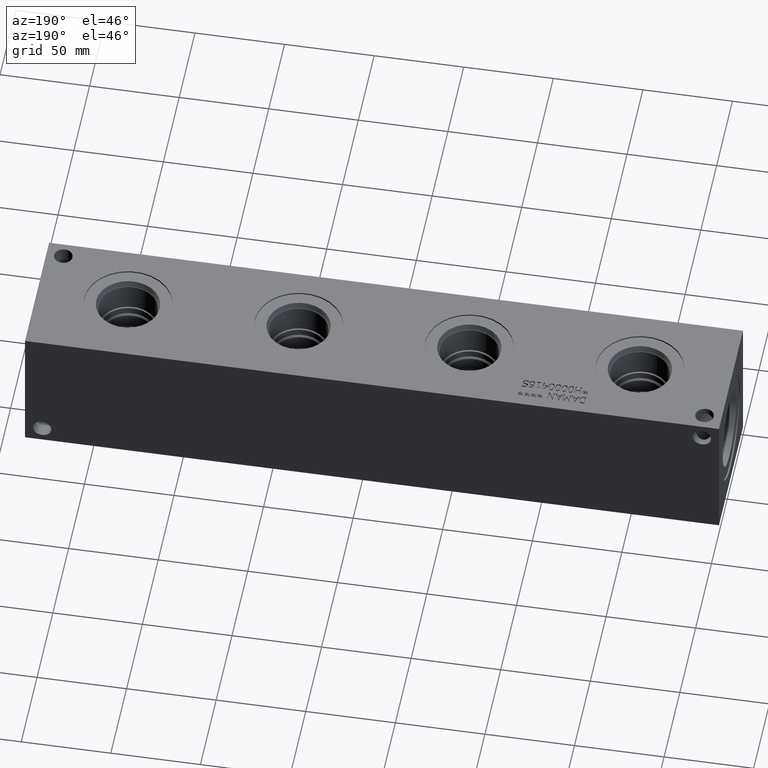
[diagram: clean part render]
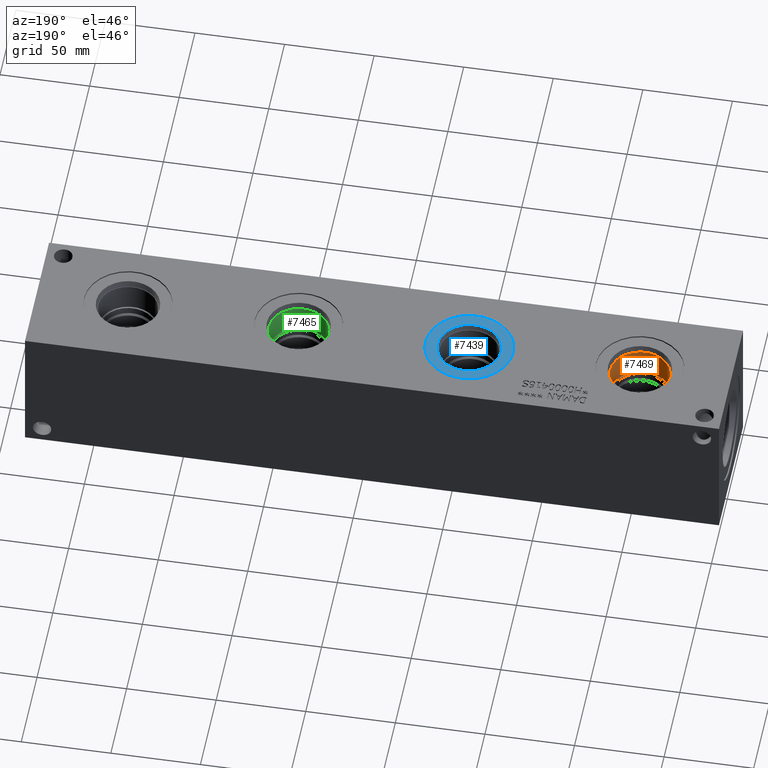
[diagram: same view with three faces highlighted in distinct colors, each labeled with its STEP entity id]
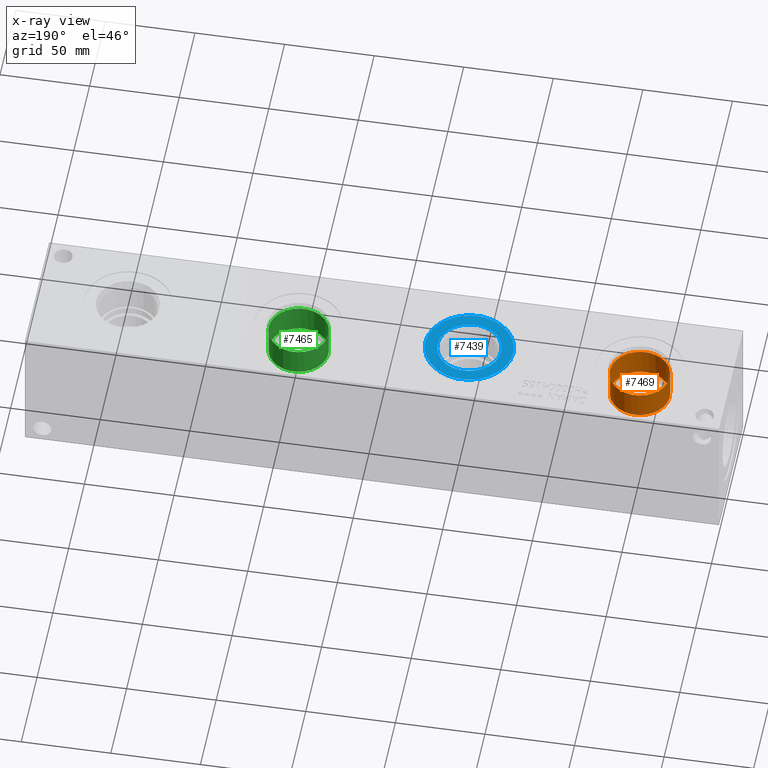
[diagram: x-ray of the same camera — body ghosted, the three highlighted faces saturated]
A machine part, auxiliary view with three faces highlighted in distinct colors.
The next image is the same camera in x-ray (body ghosted, the three faces saturated) — at least one of them is partly hidden behind the body in this view.
Their STEP definitions:

[orange] entity #7469 — the highlighted cylindrical surface (bore or boss wall) has radius 16.67 mm, axis along (0, 0, 1).
#76=CYLINDRICAL_SURFACE('',#7888,16.67);
#187=CIRCLE('',#7885,16.67);
#188=CIRCLE('',#7886,16.67);
#190=CIRCLE('',#7889,16.67);
#904=FACE_OUTER_BOUND('',#1331,.T.);
#1331=EDGE_LOOP('',(#6475,#6476,#6477,#6478,#6479));
#2057=LINE('',#12772,#2771);
#2771=VECTOR('',#9396,16.67);
#3458=VERTEX_POINT('',#12763);
#3459=VERTEX_POINT('',#12764);
#3461=VERTEX_POINT('',#12770);
#4475=EDGE_CURVE('',#3458,#3459,#187,.T.);
#4476=EDGE_CURVE('',#3459,#3458,#188,.T.);
#4478=EDGE_CURVE('',#3461,#3461,#190,.T.);
#4479=EDGE_CURVE('',#3461,#3459,#2057,.T.);
#6475=ORIENTED_EDGE('',*,*,#4478,.F.);
#6476=ORIENTED_EDGE('',*,*,#4479,.T.);
#6477=ORIENTED_EDGE('',*,*,#4475,.F.);
#6478=ORIENTED_EDGE('',*,*,#4476,.F.);
#6479=ORIENTED_EDGE('',*,*,#4479,.F.);
#7469=ADVANCED_FACE('',(#904),#76,.F.);
#7885=AXIS2_PLACEMENT_3D('',#12765,#9386,#9387);
#7886=AXIS2_PLACEMENT_3D('',#12766,#9388,#9389);
#7888=AXIS2_PLACEMENT_3D('',#12769,#9392,#9393);
#7889=AXIS2_PLACEMENT_3D('',#12771,#9394,#9395);
#9386=DIRECTION('center_axis',(0.,0.,1.));
#9387=DIRECTION('ref_axis',(1.,0.,0.));
#9388=DIRECTION('center_axis',(0.,0.,1.));
#9389=DIRECTION('ref_axis',(1.,0.,0.));
#9392=DIRECTION('center_axis',(0.,0.,1.));
#9393=DIRECTION('ref_axis',(1.,0.,0.));
#9394=DIRECTION('center_axis',(0.,0.,-1.));
#9395=DIRECTION('ref_axis',(1.,0.,0.));
#9396=DIRECTION('',(0.,0.,-1.));
#12763=CARTESIAN_POINT('',(67.47,38.1,56.3626));
#12764=CARTESIAN_POINT('',(34.13,38.1,56.3626));
#12765=CARTESIAN_POINT('Origin',(50.8,38.1,56.3626));
#12766=CARTESIAN_POINT('Origin',(50.8,38.1,56.3626));
#12769=CARTESIAN_POINT('Origin',(50.8,38.1,66.2813));
#12770=CARTESIAN_POINT('',(34.13,38.1,71.9277));
#12771=CARTESIAN_POINT('Origin',(50.8,38.1,71.9277));
#12772=CARTESIAN_POINT('',(34.13,38.1,66.2813));

[blue] entity #7439 — the highlighted planar face has unit normal (0, 0, -1).
#139=CIRCLE('',#7807,24.5618);
#140=CIRCLE('',#7808,24.5618);
#141=CIRCLE('',#7810,17.7546);
#142=CIRCLE('',#7811,17.7546);
#248=FACE_BOUND('',#1297,.T.);
#874=FACE_OUTER_BOUND('',#1296,.T.);
#1296=EDGE_LOOP('',(#6329,#6330));
#1297=EDGE_LOOP('',(#6331,#6332));
#3406=VERTEX_POINT('',#12607);
#3407=VERTEX_POINT('',#12609);
#3408=VERTEX_POINT('',#12613);
#3409=VERTEX_POINT('',#12614);
#4402=EDGE_CURVE('',#3406,#3407,#139,.T.);
#4403=EDGE_CURVE('',#3407,#3406,#140,.T.);
#4404=EDGE_CURVE('',#3408,#3409,#141,.T.);
#4405=EDGE_CURVE('',#3409,#3408,#142,.T.);
#6329=ORIENTED_EDGE('',*,*,#4403,.F.);
#6330=ORIENTED_EDGE('',*,*,#4402,.F.);
#6331=ORIENTED_EDGE('',*,*,#4404,.T.);
#6332=ORIENTED_EDGE('',*,*,#4405,.T.);
#6798=PLANE('',#7809);
#7439=ADVANCED_FACE('',(#874,#248),#6798,.F.);
#7807=AXIS2_PLACEMENT_3D('',#12610,#9205,#9206);
#7808=AXIS2_PLACEMENT_3D('',#12611,#9207,#9208);
#7809=AXIS2_PLACEMENT_3D('',#12612,#9209,#9210);
#7810=AXIS2_PLACEMENT_3D('',#12615,#9211,#9212);
#7811=AXIS2_PLACEMENT_3D('',#12616,#9213,#9214);
#9205=DIRECTION('center_axis',(0.,0.,-1.));
#9206=DIRECTION('ref_axis',(1.,0.,0.));
#9207=DIRECTION('center_axis',(0.,0.,-1.));
#9208=DIRECTION('ref_axis',(1.,0.,0.));
#9209=DIRECTION('center_axis',(0.,0.,-1.));
#9210=DIRECTION('ref_axis',(-1.,0.,0.));
#9211=DIRECTION('center_axis',(0.,0.,-1.));
#9212=DIRECTION('ref_axis',(1.,0.,0.));
#9213=DIRECTION('center_axis',(0.,0.,-1.));
#9214=DIRECTION('ref_axis',(1.,0.,0.));
#12607=CARTESIAN_POINT('',(121.4882,38.1,75.4126));
#12609=CARTESIAN_POINT('',(170.6118,38.1,75.4126));
#12610=CARTESIAN_POINT('Origin',(146.05,38.1,75.4126));
#12611=CARTESIAN_POINT('Origin',(146.05,38.1,75.4126));
#12612=CARTESIAN_POINT('Origin',(163.8046,38.1,75.4126));
#12613=CARTESIAN_POINT('',(163.8046,38.1,75.4126));
#12614=CARTESIAN_POINT('',(128.2954,38.1,75.4126));
#12615=CARTESIAN_POINT('Origin',(146.05,38.1,75.4126));
#12616=CARTESIAN_POINT('Origin',(146.05,38.1,75.4126));

[green] entity #7465 — the highlighted cylindrical surface (bore or boss wall) has radius 16.67 mm, axis along (0, 0, 1).
#74=CYLINDRICAL_SURFACE('',#7879,16.67);
#138=CIRCLE('',#7805,16.67);
#182=CIRCLE('',#7876,16.67);
#183=CIRCLE('',#7877,16.67);
#900=FACE_OUTER_BOUND('',#1326,.T.);
#1326=EDGE_LOOP('',(#6457,#6458,#6459,#6460,#6461));
#2054=LINE('',#12753,#2768);
#2768=VECTOR('',#9373,16.67);
#3405=VERTEX_POINT('',#12603);
#3453=VERTEX_POINT('',#12746);
#3454=VERTEX_POINT('',#12747);
#4400=EDGE_CURVE('',#3405,#3405,#138,.T.);
#4467=EDGE_CURVE('',#3453,#3454,#182,.T.);
#4468=EDGE_CURVE('',#3454,#3453,#183,.T.);
#4470=EDGE_CURVE('',#3405,#3454,#2054,.T.);
#6457=ORIENTED_EDGE('',*,*,#4400,.T.);
#6458=ORIENTED_EDGE('',*,*,#4470,.T.);
#6459=ORIENTED_EDGE('',*,*,#4467,.F.);
#6460=ORIENTED_EDGE('',*,*,#4468,.F.);
#6461=ORIENTED_EDGE('',*,*,#4470,.F.);
#7465=ADVANCED_FACE('',(#900),#74,.F.);
#7805=AXIS2_PLACEMENT_3D('',#12605,#9200,#9201);
#7876=AXIS2_PLACEMENT_3D('',#12748,#9365,#9366);
#7877=AXIS2_PLACEMENT_3D('',#12749,#9367,#9368);
#7879=AXIS2_PLACEMENT_3D('',#12752,#9371,#9372);
#9200=DIRECTION('center_axis',(0.,0.,1.));
#9201=DIRECTION('ref_axis',(1.,0.,0.));
#9365=DIRECTION('center_axis',(0.,0.,1.));
#9366=DIRECTION('ref_axis',(1.,0.,0.));
#9367=DIRECTION('center_axis',(0.,0.,1.));
#9368=DIRECTION('ref_axis',(1.,0.,0.));
#9371=DIRECTION('center_axis',(0.,0.,1.));
#9372=DIRECTION('ref_axis',(1.,0.,0.));
#9373=DIRECTION('',(0.,0.,-1.));
#12603=CARTESIAN_POINT('',(224.63,38.1,71.9277));
#12605=CARTESIAN_POINT('Origin',(241.3,38.1,71.9277));
#12746=CARTESIAN_POINT('',(257.97,38.1,56.3626));
#12747=CARTESIAN_POINT('',(224.63,38.1,56.3626));
#12748=CARTESIAN_POINT('Origin',(241.3,38.1,56.3626));
#12749=CARTESIAN_POINT('Origin',(241.3,38.1,56.3626));
#12752=CARTESIAN_POINT('Origin',(241.3,38.1,66.2813));
#12753=CARTESIAN_POINT('',(224.63,38.1,66.2813));